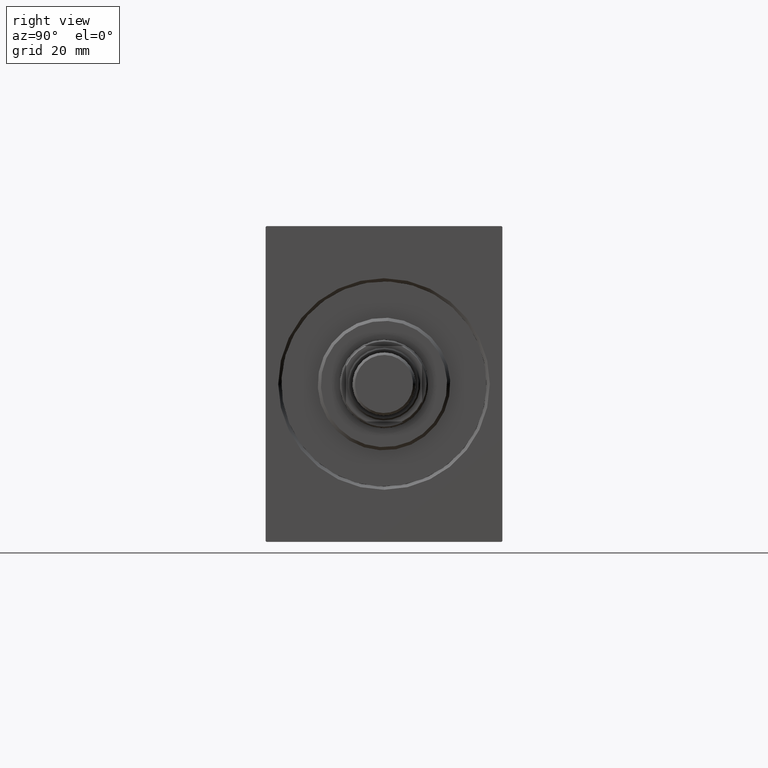
[diagram: clean part render]
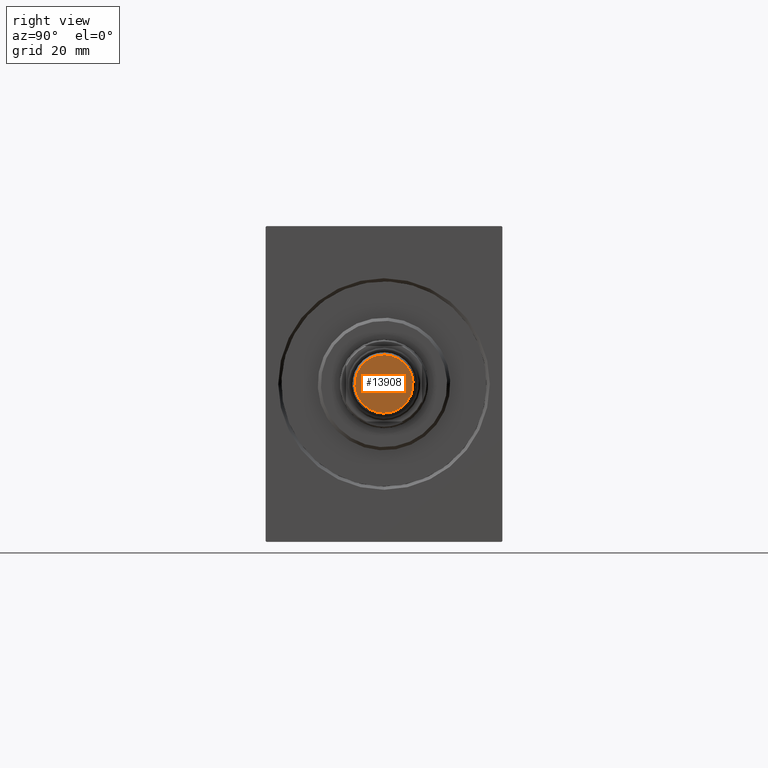
[diagram: same view with one face highlighted and labeled with its STEP entity id]
A machine part, right view. The second image highlights one B-rep face of the part: STEP entity #13908.
In plain terms, the highlighted planar face has unit normal (-1, -0, 0).
Its self-contained STEP definition (entity closure, byte-faithful):
#2096 = EDGE_LOOP ( 'NONE', ( #16543, #17885 ) ) ;
#3312 = VERTEX_POINT ( 'NONE', #35193 ) ;
#4435 = DIRECTION ( 'NONE',  ( 1.000000000000000000, 0.000000000000000000, 0.000000000000000000 ) ) ;
#9849 = CIRCLE ( 'NONE', #28453, 9.199999999999995737 ) ;
#9852 = AXIS2_PLACEMENT_3D ( 'NONE', #29760, #33346, #23039 ) ;
#11561 = CARTESIAN_POINT ( 'NONE',  ( 9.199999999999995737, 0.000000000000000000, 0.000000000000000000 ) ) ;
#13908 = ADVANCED_FACE ( 'NONE', ( #26399 ), #16528, .F. ) ;
#14969 = DIRECTION ( 'NONE',  ( -0.000000000000000000, -0.000000000000000000, -1.000000000000000000 ) ) ;
#15296 = DIRECTION ( 'NONE',  ( -0.000000000000000000, -0.000000000000000000, -1.000000000000000000 ) ) ;
#15529 = CARTESIAN_POINT ( 'NONE',  ( 0.000000000000000000, 0.000000000000000000, 0.000000000000000000 ) ) ;
#16528 = PLANE ( 'NONE',  #9852 ) ;
#16543 = ORIENTED_EDGE ( 'NONE', *, *, #39555, .T. ) ;
#17885 = ORIENTED_EDGE ( 'NONE', *, *, #39470, .T. ) ;
#18400 = AXIS2_PLACEMENT_3D ( 'NONE', #41447, #14969, #4435 ) ;
#23039 = DIRECTION ( 'NONE',  ( 1.000000000000000000, 0.000000000000000000, -0.000000000000000000 ) ) ;
#24360 = VERTEX_POINT ( 'NONE', #11561 ) ;
#26399 = FACE_OUTER_BOUND ( 'NONE', #2096, .T. ) ;
#28453 = AXIS2_PLACEMENT_3D ( 'NONE', #15529, #15296, #42199 ) ;
#29760 = CARTESIAN_POINT ( 'NONE',  ( 0.000000000000000000, 0.000000000000000000, 0.000000000000000000 ) ) ;
#33346 = DIRECTION ( 'NONE',  ( 0.000000000000000000, 0.000000000000000000, 1.000000000000000000 ) ) ;
#34899 = CIRCLE ( 'NONE', #18400, 9.199999999999995737 ) ;
#35193 = CARTESIAN_POINT ( 'NONE',  ( -9.199999999999995737, 1.175660927181458645E-15, 0.000000000000000000 ) ) ;
#39470 = EDGE_CURVE ( 'NONE', #3312, #24360, #9849, .T. ) ;
#39555 = EDGE_CURVE ( 'NONE', #24360, #3312, #34899, .T. ) ;
#41447 = CARTESIAN_POINT ( 'NONE',  ( 0.000000000000000000, 0.000000000000000000, 0.000000000000000000 ) ) ;
#42199 = DIRECTION ( 'NONE',  ( 1.000000000000000000, 0.000000000000000000, 0.000000000000000000 ) ) ;